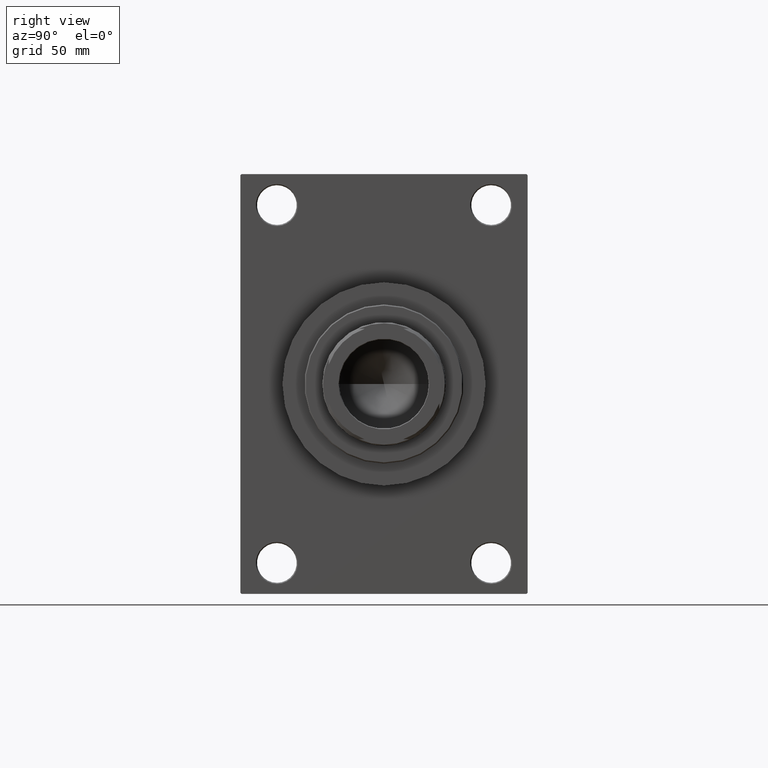
[diagram: clean part render]
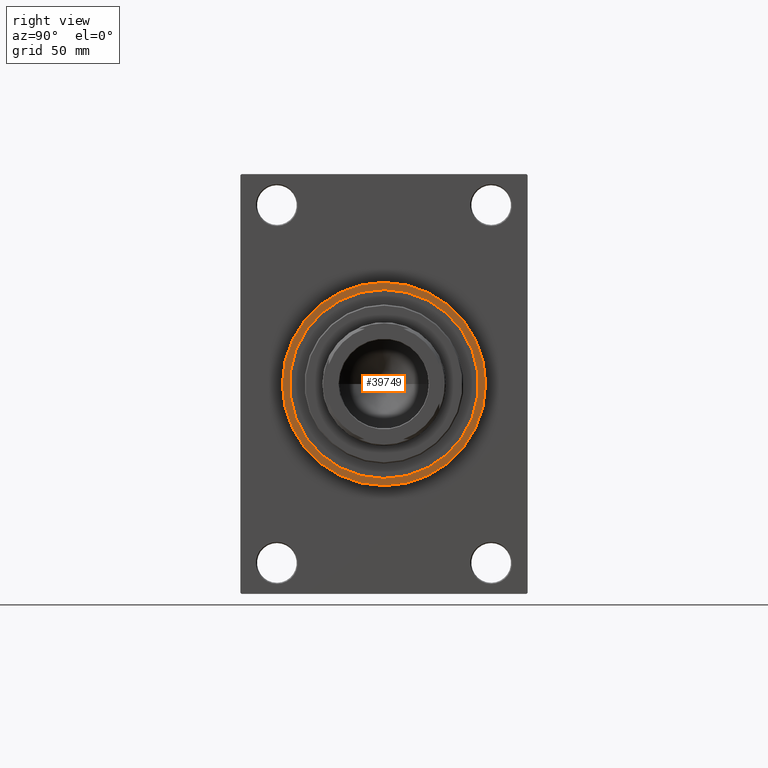
[diagram: same view with one face highlighted and labeled with its STEP entity id]
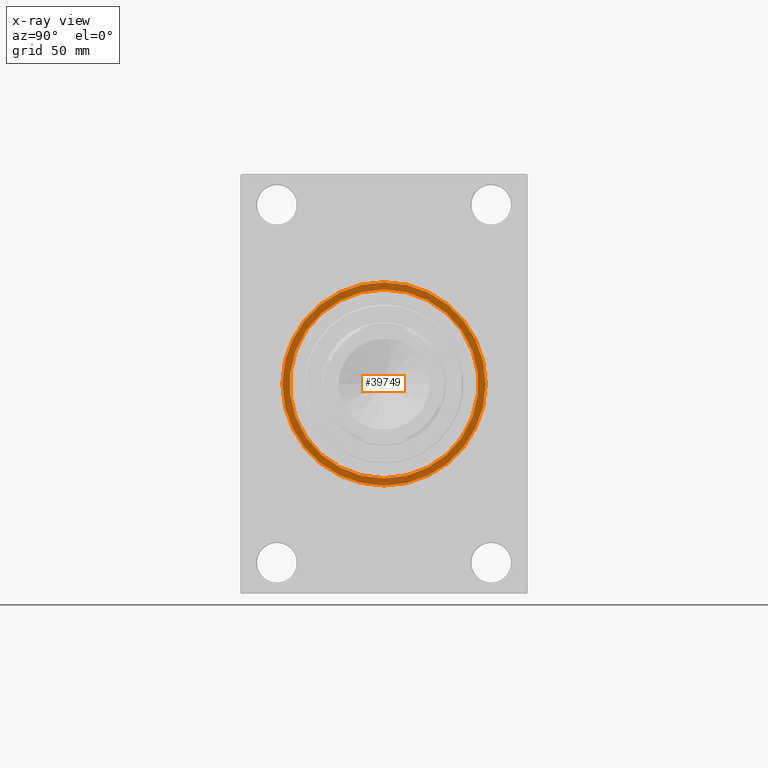
[diagram: x-ray of the same camera — body ghosted, the highlighted face saturated]
A machine part, right view. The second image highlights one B-rep face of the part: STEP entity #39749.
The next image is the same camera in x-ray: the body ghosted, the highlighted face saturated — about 0% of this face is hidden behind the body in this view.
In plain terms, the highlighted planar face has unit normal (1, 0, 0).
Its self-contained STEP definition (entity closure, byte-faithful):
#2167 = EDGE_CURVE ( 'NONE', #3196, #40687, #14725, .T. ) ;
#2771 = DIRECTION ( 'NONE',  ( 1.000000000000000000, 0.000000000000000000, 0.000000000000000000 ) ) ;
#3196 = VERTEX_POINT ( 'NONE', #22166 ) ;
#3783 = FACE_OUTER_BOUND ( 'NONE', #7815, .T. ) ;
#5478 = VERTEX_POINT ( 'NONE', #6003 ) ;
#6003 = CARTESIAN_POINT ( 'NONE',  ( 183.0000000000000000, 0.000000000000000000, -42.75000000000000000 ) ) ;
#6153 = CARTESIAN_POINT ( 'NONE',  ( 183.0000000000000000, 0.000000000000000000, 0.000000000000000000 ) ) ;
#7815 = EDGE_LOOP ( 'NONE', ( #38867, #17332 ) ) ;
#7971 = CIRCLE ( 'NONE', #9500, 42.75000000000000000 ) ;
#8340 = DIRECTION ( 'NONE',  ( 1.000000000000000000, 0.000000000000000000, 0.000000000000000000 ) ) ;
#9500 = AXIS2_PLACEMENT_3D ( 'NONE', #47670, #29309, #44042 ) ;
#10313 = CARTESIAN_POINT ( 'NONE',  ( 183.0000000000000000, 0.000000000000000000, 0.000000000000000000 ) ) ;
#10792 = DIRECTION ( 'NONE',  ( 1.000000000000000000, 0.000000000000000000, 0.000000000000000000 ) ) ;
#10798 = CARTESIAN_POINT ( 'NONE',  ( 183.0000000000000000, 5.633375276077824704E-15, -46.00000000000000000 ) ) ;
#10812 = AXIS2_PLACEMENT_3D ( 'NONE', #30305, #8340, #41173 ) ;
#12998 = CARTESIAN_POINT ( 'NONE',  ( 183.0000000000000000, 5.235365066354935472E-15, 42.75000000000000000 ) ) ;
#14725 = CIRCLE ( 'NONE', #30112, 46.00000000000000000 ) ;
#14756 = CARTESIAN_POINT ( 'NONE',  ( 183.0000000000000000, 0.000000000000000000, 0.000000000000000000 ) ) ;
#14890 = DIRECTION ( 'NONE',  ( 0.000000000000000000, 0.000000000000000000, -1.000000000000000000 ) ) ;
#15127 = EDGE_CURVE ( 'NONE', #46686, #5478, #34753, .T. ) ;
#15752 = EDGE_LOOP ( 'NONE', ( #19053, #38854 ) ) ;
#15854 = AXIS2_PLACEMENT_3D ( 'NONE', #10313, #10792, #14890 ) ;
#17332 = ORIENTED_EDGE ( 'NONE', *, *, #44929, .T. ) ;
#19053 = ORIENTED_EDGE ( 'NONE', *, *, #25919, .F. ) ;
#22121 = PLANE ( 'NONE',  #15854 ) ;
#22166 = CARTESIAN_POINT ( 'NONE',  ( 183.0000000000000000, 0.000000000000000000, 46.00000000000000000 ) ) ;
#25919 = EDGE_CURVE ( 'NONE', #5478, #46686, #7971, .T. ) ;
#29309 = DIRECTION ( 'NONE',  ( 1.000000000000000000, 0.000000000000000000, 0.000000000000000000 ) ) ;
#30112 = AXIS2_PLACEMENT_3D ( 'NONE', #6153, #2771, #31528 ) ;
#30305 = CARTESIAN_POINT ( 'NONE',  ( 183.0000000000000000, 0.000000000000000000, 0.000000000000000000 ) ) ;
#31372 = CIRCLE ( 'NONE', #43662, 46.00000000000000000 ) ;
#31528 = DIRECTION ( 'NONE',  ( 0.000000000000000000, 0.000000000000000000, -1.000000000000000000 ) ) ;
#34753 = CIRCLE ( 'NONE', #10812, 42.75000000000000000 ) ;
#36861 = FACE_BOUND ( 'NONE', #15752, .T. ) ;
#38854 = ORIENTED_EDGE ( 'NONE', *, *, #15127, .F. ) ;
#38867 = ORIENTED_EDGE ( 'NONE', *, *, #2167, .T. ) ;
#39749 = ADVANCED_FACE ( 'NONE', ( #36861, #3783 ), #22121, .T. ) ;
#40687 = VERTEX_POINT ( 'NONE', #10798 ) ;
#40816 = DIRECTION ( 'NONE',  ( 0.000000000000000000, 0.000000000000000000, -1.000000000000000000 ) ) ;
#41173 = DIRECTION ( 'NONE',  ( 0.000000000000000000, 0.000000000000000000, -1.000000000000000000 ) ) ;
#43662 = AXIS2_PLACEMENT_3D ( 'NONE', #14756, #44202, #40816 ) ;
#44042 = DIRECTION ( 'NONE',  ( 0.000000000000000000, 0.000000000000000000, -1.000000000000000000 ) ) ;
#44202 = DIRECTION ( 'NONE',  ( 1.000000000000000000, 0.000000000000000000, 0.000000000000000000 ) ) ;
#44929 = EDGE_CURVE ( 'NONE', #40687, #3196, #31372, .T. ) ;
#46686 = VERTEX_POINT ( 'NONE', #12998 ) ;
#47670 = CARTESIAN_POINT ( 'NONE',  ( 183.0000000000000000, 0.000000000000000000, 0.000000000000000000 ) ) ;